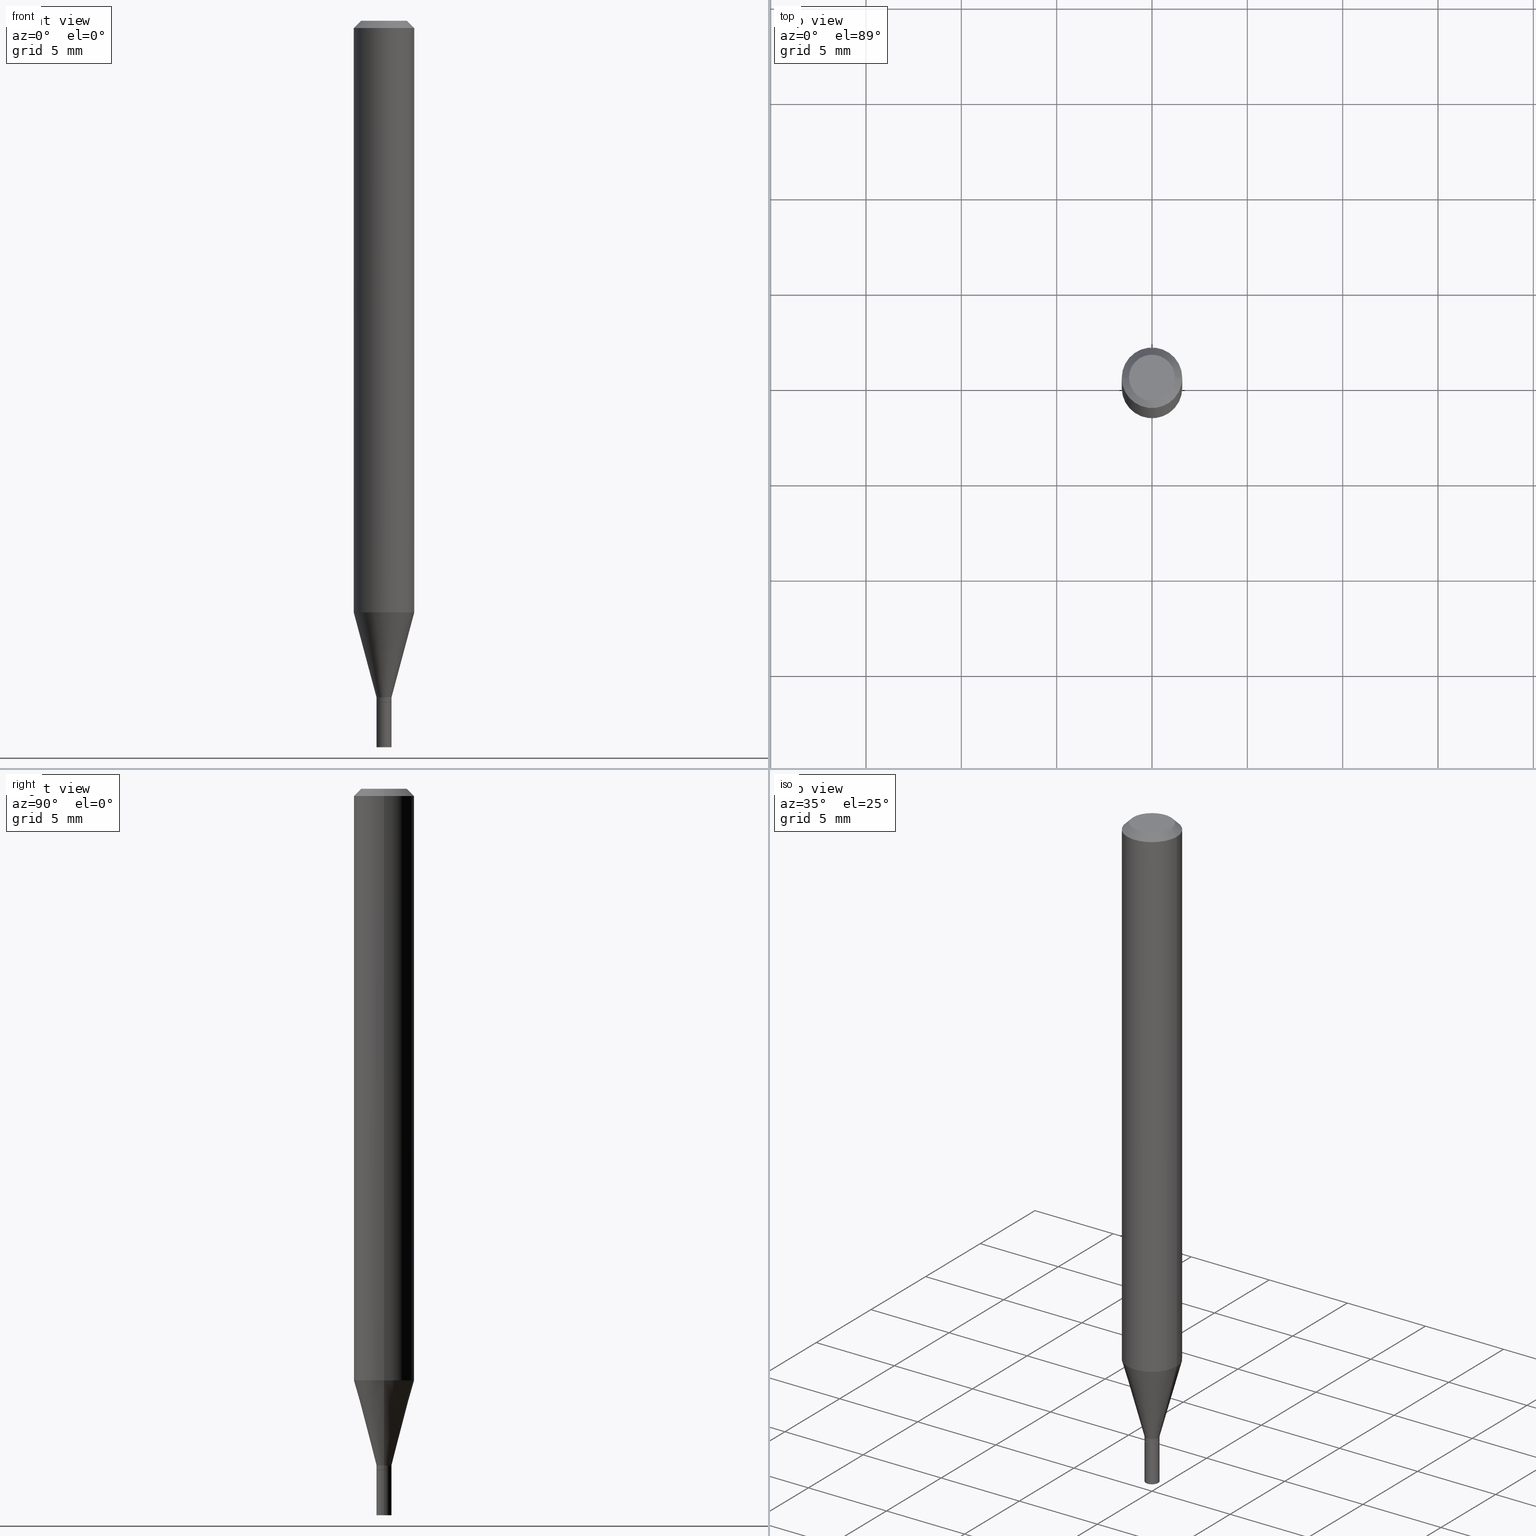
[diagram: canonical four-view strip — front | top / right | iso, engineering-drawing reading convention]
A machine part, canonical four-view strip (front | top / right | iso — engineering-drawing reading convention). The complete STEP part file that produces these views, byte-faithful:
ISO-10303-21;
HEADER;
FILE_DESCRIPTION (( 'STEP AP203' ),
    '1' );
FILE_NAME ('02301.STEP',
    '2024-03-18T20:03:23',
    ( '' ),
    ( '' ),
    'SwSTEP 2.0',
    'SolidWorks 2023',
    '' );
FILE_SCHEMA (( 'CONFIG_CONTROL_DESIGN' ));
ENDSEC;

DATA;
#1 = CARTESIAN_POINT ( 'NONE',  ( 3.668203209277705088E-31, -5.237222008264718399E-17, -0.01499999999999999944 ) ) ;
#2 = ORIENTED_EDGE ( 'NONE', *, *, #271, .F. ) ;
#3 = AXIS2_PLACEMENT_3D ( 'NONE', #211, #40, #324 ) ;
#4 = CARTESIAN_POINT ( 'NONE',  ( -0.01549999999999992183, -4.294273698286767256E-15, -1.397000000000000242 ) ) ;
#5 = EDGE_CURVE ( 'NONE', #394, #454, #462, .T. ) ;
#6 = EDGE_CURVE ( 'NONE', #194, #454, #366, .T. ) ;
#7 = MECHANICAL_CONTEXT ( 'NONE', #140, 'mechanical' ) ;
#8 = ADVANCED_FACE ( 'NONE', ( #451 ), #228, .T. ) ;
#9 = DIRECTION ( 'NONE',  ( 1.000000000000000000, -6.982962677686238312E-15, 0.000000000000000000 ) ) ;
#10 = AXIS2_PLACEMENT_3D ( 'NONE', #14, #128, #413 ) ;
#11 = AXIS2_PLACEMENT_3D ( 'NONE', #322, #326, #367 ) ;
#12 = PERSON_AND_ORGANIZATION ( #253, #344 ) ;
#13 = EDGE_LOOP ( 'NONE', ( #188, #230 ) ) ;
#14 = CARTESIAN_POINT ( 'NONE',  ( 3.416319922240636557E-29, -4.877599430363875031E-15, -1.397000000000000242 ) ) ;
#15 = ORIENTED_EDGE ( 'NONE', *, *, #70, .F. ) ;
#16 = DIRECTION ( 'NONE',  ( -2.445468806185136597E-29, 3.491481338843145583E-15, 1.000000000000000000 ) ) ;
#17 = ORIENTED_EDGE ( 'NONE', *, *, #5, .T. ) ;
#18 = ORIENTED_EDGE ( 'NONE', *, *, #143, .T. ) ;
#19 = CARTESIAN_POINT ( 'NONE',  ( 1.145470065593040868E-44, -1.635427672643458845E-30, -4.684051019975766066E-16 ) ) ;
#20 = CONICAL_SURFACE ( 'NONE', #274, 0.01549999999999992183, 0.2617993877991499629 ) ;
#21 = AXIS2_PLACEMENT_3D ( 'NONE', #68, #277, #392 ) ;
#22 = DIRECTION ( 'NONE',  ( -2.445468806185136597E-29, 3.491481338843145583E-15, 1.000000000000000000 ) ) ;
#23 = CARTESIAN_POINT ( 'NONE',  ( 0.06250000000000000000, -4.811533449433679005E-16, -0.01499999999999999944 ) ) ;
#24 = EDGE_CURVE ( 'NONE', #436, #194, #123, .T. ) ;
#25 = FACE_OUTER_BOUND ( 'NONE', #178, .T. ) ;
#26 = AXIS2_PLACEMENT_3D ( 'NONE', #375, #229, #377 ) ;
#27 = DESIGN_CONTEXT ( 'detailed design', #457, 'design' ) ;
#28 = DIRECTION ( 'NONE',  ( 1.000000000000000000, -6.982962677686238312E-15, 0.000000000000000000 ) ) ;
#29 = FACE_OUTER_BOUND ( 'NONE', #347, .T. ) ;
#30 = DIRECTION ( 'NONE',  ( 1.000000000000000000, -6.982962677686265922E-15, 4.876176775795935793E-29 ) ) ;
#31 = AXIS2_PLACEMENT_3D ( 'NONE', #380, #348, #153 ) ;
#32 = EDGE_CURVE ( 'NONE', #127, #258, #58, .T. ) ;
#33 =( GEOMETRIC_REPRESENTATION_CONTEXT ( 3 ) GLOBAL_UNCERTAINTY_ASSIGNED_CONTEXT ( ( #191 ) ) GLOBAL_UNIT_ASSIGNED_CONTEXT ( ( #219, #282, #243 ) ) REPRESENTATION_CONTEXT ( 'NONE', 'WORKASPACE' ) );
#34 = FACE_OUTER_BOUND ( 'NONE', #52, .T. ) ;
#35 = ORIENTED_EDGE ( 'NONE', *, *, #284, .F. ) ;
#36 = DIRECTION ( 'NONE',  ( -2.445468806185136597E-29, 3.491481338843145583E-15, 1.000000000000000000 ) ) ;
#37 = APPROVAL_ROLE ( '' ) ;
#38 = APPROVAL ( #47, 'UNSPECIFIED' ) ;
#39 = ORIENTED_EDGE ( 'NONE', *, *, #73, .T. ) ;
#40 = DIRECTION ( 'NONE',  ( -2.445468806185136597E-29, 3.491481338843145583E-15, 1.000000000000000000 ) ) ;
#41 = EDGE_CURVE ( 'NONE', #314, #395, #447, .T. ) ;
#42 = PERSON_AND_ORGANIZATION_ROLE ( 'classification_officer' ) ;
#43 = CIRCLE ( 'NONE', #98, 0.01549999999999999989 ) ;
#44 = EDGE_CURVE ( 'NONE', #395, #314, #158, .T. ) ;
#45 = CARTESIAN_POINT ( 'NONE',  ( 3.440774610302487541E-29, -4.912514243752305891E-15, -1.407000000000000028 ) ) ;
#46 = PERSON_AND_ORGANIZATION_ROLE ( 'design_supplier' ) ;
#47 = APPROVAL_STATUS ( 'not_yet_approved' ) ;
#48 = VECTOR ( 'NONE', #292, 39.37007874015748143 ) ;
#49 = ORIENTED_EDGE ( 'NONE', *, *, #73, .F. ) ;
#50 = DIRECTION ( 'NONE',  ( -2.445468806185136597E-29, 3.491481338843145583E-15, 1.000000000000000000 ) ) ;
#51 = DIRECTION ( 'NONE',  ( -2.445468806185136877E-29, 3.491481338843145188E-15, 1.000000000000000000 ) ) ;
#52 = EDGE_LOOP ( 'NONE', ( #363, #71, #39, #339 ) ) ;
#53 = CARTESIAN_POINT ( 'NONE',  ( 0.000000000000000000, 0.000000000000000000, 0.000000000000000000 ) ) ;
#54 = ADVANCED_FACE ( 'NONE', ( #442 ), #398, .T. ) ;
#55 = MANIFOLD_SOLID_BREP ( 'Body-Move/Copy2[1]', #76 ) ;
#56 = CARTESIAN_POINT ( 'NONE',  ( 0.01549999999999992183, -1.082359215041365986E-16, 7.558074002483662259E-31 ) ) ;
#57 = AXIS2_PLACEMENT_3D ( 'NONE', #198, #406, #336 ) ;
#58 = LINE ( 'NONE', #232, #182 ) ;
#59 = PRODUCT_DEFINITION ( 'UNKNOWN', '', #317, #27 ) ;
#60 = DIRECTION ( 'NONE',  ( -2.438088387897960049E-29, 3.491481338843145188E-15, 1.000000000000000000 ) ) ;
#61 = DIRECTION ( 'NONE',  ( 2.438088387897960049E-29, -3.491481338843145188E-15, -1.000000000000000000 ) ) ;
#62 = CONICAL_SURFACE ( 'NONE', #448, 0.01499999999999999944, 0.7853981633974718157 ) ;
#63 = CARTESIAN_POINT ( 'NONE',  ( 3.440774610302487541E-29, -4.912514243752305891E-15, -1.407000000000000028 ) ) ;
#64 = LINE ( 'NONE', #313, #289 ) ;
#65 = DIRECTION ( 'NONE',  ( 1.000000000000000000, -6.982962677686273810E-15, 0.000000000000000000 ) ) ;
#66 = AXIS2_PLACEMENT_3D ( 'NONE', #154, #294, #340 ) ;
#67 = ORIENTED_EDGE ( 'NONE', *, *, #70, .T. ) ;
#68 = CARTESIAN_POINT ( 'NONE',  ( 0.000000000000000000, 0.000000000000000000, 0.000000000000000000 ) ) ;
#69 = DIRECTION ( 'NONE',  ( 1.000000000000000000, -6.982962677686273810E-15, 0.000000000000000000 ) ) ;
#70 = EDGE_CURVE ( 'NONE', #436, #394, #77, .T. ) ;
#71 = ORIENTED_EDGE ( 'NONE', *, *, #6, .T. ) ;
#72 = CARTESIAN_POINT ( 'NONE',  ( 0.06250000000000000000, -4.701606467457928999E-15, -1.221593612044262978 ) ) ;
#73 = EDGE_CURVE ( 'NONE', #454, #304, #346, .T. ) ;
#74 = ORIENTED_EDGE ( 'NONE', *, *, #271, .T. ) ;
#75 =( LENGTH_UNIT ( ) NAMED_UNIT ( * ) SI_UNIT ( $, .METRE. ) );
#76 = CLOSED_SHELL ( 'NONE', ( #359, #306, #267, #305 ) ) ;
#77 = CIRCLE ( 'NONE', #66, 0.01499999999999999944 ) ;
#78 = APPROVAL_STATUS ( 'not_yet_approved' ) ;
#79 = LENGTH_MEASURE_WITH_UNIT ( LENGTH_MEASURE( 0.02539999999999999897 ), #75 );
#80 = DIRECTION ( 'NONE',  ( -2.438088387897960049E-29, 3.491481338843145188E-15, 1.000000000000000000 ) ) ;
#81 = ORIENTED_EDGE ( 'NONE', *, *, #373, .F. ) ;
#82 = APPROVAL_PERSON_ORGANIZATION ( #12, #120, #179 ) ;
#83 = CARTESIAN_POINT ( 'NONE',  ( 0.01549999999999999989, -5.345457929768855342E-15, -1.500000000000000222 ) ) ;
#84 = ORIENTED_EDGE ( 'NONE', *, *, #184, .T. ) ;
#85 = EDGE_CURVE ( 'NONE', #391, #127, #438, .T. ) ;
#86 = ADVANCED_FACE ( 'NONE', ( #333 ), #265, .F. ) ;
#87 = DIRECTION ( 'NONE',  ( -2.445468806185136877E-29, 3.491481338843145188E-15, 1.000000000000000000 ) ) ;
#88 = DIMENSIONAL_EXPONENTS ( 1.000000000000000000, 0.000000000000000000, 0.000000000000000000, 0.000000000000000000, 0.000000000000000000, 0.000000000000000000, 0.000000000000000000 ) ;
#89 = EDGE_LOOP ( 'NONE', ( #445, #84, #190, #325 ) ) ;
#90 = ORIENTED_EDGE ( 'NONE', *, *, #386, .T. ) ;
#91 = DIRECTION ( 'NONE',  ( -2.445468806185136597E-29, 3.491481338843145583E-15, 1.000000000000000000 ) ) ;
#92 = CARTESIAN_POINT ( 'NONE',  ( 3.668203209277704895E-29, -5.237222008264718177E-15, -1.500000000000000222 ) ) ;
#93 = CIRCLE ( 'NONE', #152, 0.01549999999999999989 ) ;
#94 = CARTESIAN_POINT ( 'NONE',  ( 3.316907271900976096E-16, 0.04749999999999999362, -4.000479145938377490E-16 ) ) ;
#95 = DIRECTION ( 'NONE',  ( -2.445468806185136597E-29, 3.491481338843145583E-15, 1.000000000000000000 ) ) ;
#96 = DIRECTION ( 'NONE',  ( -2.445468806185136597E-29, 3.491481338843145583E-15, 1.000000000000000000 ) ) ;
#97 = VECTOR ( 'NONE', #87, 39.37007874015748143 ) ;
#98 = AXIS2_PLACEMENT_3D ( 'NONE', #45, #397, #9 ) ;
#99 = DIRECTION ( 'NONE',  ( -1.000000000000000000, 6.982962677686265922E-15, -4.876176775795935793E-29 ) ) ;
#100 = CARTESIAN_POINT ( 'NONE',  ( -0.04749999999999999362, 3.578768372314202617E-16, -4.684051019975790718E-16 ) ) ;
#101 = ORIENTED_EDGE ( 'NONE', *, *, #201, .T. ) ;
#102 = DIRECTION ( 'NONE',  ( 1.000000000000000000, -6.982962677686267499E-15, 4.876176775795935793E-29 ) ) ;
#103 = CARTESIAN_POINT ( 'NONE',  ( 0.01549999999999992183, -5.019004424587020764E-15, -1.406500000000000083 ) ) ;
#104 = EDGE_CURVE ( 'NONE', #402, #304, #315, .T. ) ;
#105 = AXIS2_PLACEMENT_3D ( 'NONE', #133, #96, #28 ) ;
#106 = CIRCLE ( 'NONE', #202, 0.04749999999999999362 ) ;
#107 = ORIENTED_EDGE ( 'NONE', *, *, #217, .T. ) ;
#108 = CARTESIAN_POINT ( 'NONE',  ( -0.01549999999999999989, 1.101341240428155280E-16, -7.624349389895103058E-31 ) ) ;
#109 = DATE_TIME_ROLE ( 'creation_date' ) ;
#110 = CALENDAR_DATE ( 2024, 18, 3 ) ;
#111 = DATE_AND_TIME ( #181, #456 ) ;
#112 = CIRCLE ( 'NONE', #330, 0.06250000000000000000 ) ;
#113 = SECURITY_CLASSIFICATION ( '', '', #180 ) ;
#114 = CALENDAR_DATE ( 2024, 18, 3 ) ;
#115 = ORIENTED_EDGE ( 'NONE', *, *, #338, .T. ) ;
#116 = LINE ( 'NONE', #254, #423 ) ;
#117 = DIRECTION ( 'NONE',  ( 1.000000000000000000, -6.982962677686267499E-15, 4.852736867747366768E-29 ) ) ;
#118 = EDGE_LOOP ( 'NONE', ( #342, #262, #196, #115 ) ) ;
#119 = EDGE_CURVE ( 'NONE', #194, #402, #452, .T. ) ;
#120 = APPROVAL ( #78, 'UNSPECIFIED' ) ;
#121 = CALENDAR_DATE ( 2024, 18, 3 ) ;
#122 = LOCAL_TIME ( 16, 3, 23.00000000000000000, #434 ) ;
#123 = LINE ( 'NONE', #223, #48 ) ;
#124 = EDGE_LOOP ( 'NONE', ( #334, #101 ) ) ;
#125 = ORIENTED_EDGE ( 'NONE', *, *, #214, .T. ) ;
#126 = DIRECTION ( 'NONE',  ( 1.000000000000000000, -6.982962677686265922E-15, 4.876176775795935793E-29 ) ) ;
#127 = VERTEX_POINT ( 'NONE', #83 ) ;
#128 = DIRECTION ( 'NONE',  ( -2.445468806185136597E-29, 3.491481338843145583E-15, 1.000000000000000000 ) ) ;
#129 = DIRECTION ( 'NONE',  ( -2.445468806185136877E-29, 3.491481338843145188E-15, 1.000000000000000000 ) ) ;
#130 = VERTEX_POINT ( 'NONE', #189 ) ;
#131 = CONICAL_SURFACE ( 'NONE', #159, 0.06250000000000000000, 0.7853981633974639331 ) ;
#132 = CARTESIAN_POINT ( 'NONE',  ( 3.416319922240636557E-29, -4.877599430363875031E-15, -1.397000000000000242 ) ) ;
#133 = CARTESIAN_POINT ( 'NONE',  ( 3.440774610302487541E-29, -4.912514243752305891E-15, -1.407000000000000028 ) ) ;
#134 = CC_DESIGN_PERSON_AND_ORGANIZATION_ASSIGNMENT ( #287, #370, ( #419 ) ) ;
#135 = DIRECTION ( 'NONE',  ( -1.000000000000000000, 6.982962677686265922E-15, -4.876176775795935793E-29 ) ) ;
#136 = DIRECTION ( 'NONE',  ( 0.7071067811865642261, -2.468850131082431399E-15, 0.7071067811865309194 ) ) ;
#137 = CIRCLE ( 'NONE', #216, 0.06250000000000000000 ) ;
#138 = EDGE_CURVE ( 'NONE', #266, #360, #301, .T. ) ;
#139 = ADVANCED_FACE ( 'NONE', ( #374 ), #163, .T. ) ;
#140 = APPLICATION_CONTEXT ( 'configuration controlled 3d designs of mechanical parts and assemblies' ) ;
#141 = DIRECTION ( 'NONE',  ( -2.445468806185136597E-29, 3.491481338843145583E-15, 1.000000000000000000 ) ) ;
#142 = DIRECTION ( 'NONE',  ( -2.445468806185136597E-29, 3.491481338843145583E-15, 1.000000000000000000 ) ) ;
#143 = EDGE_CURVE ( 'NONE', #130, #412, #112, .T. ) ;
#144 = FACE_OUTER_BOUND ( 'NONE', #147, .T. ) ;
#145 = AXIS2_PLACEMENT_3D ( 'NONE', #307, #16, #187 ) ;
#146 = CIRCLE ( 'NONE', #331, 0.01549999999999992183 ) ;
#147 = EDGE_LOOP ( 'NONE', ( #107, #90, #441, #298 ) ) ;
#148 = ORIENTED_EDGE ( 'NONE', *, *, #421, .F. ) ;
#149 = CARTESIAN_POINT ( 'NONE',  ( -0.01499999999999999944, -4.803283606214179568E-15, -1.407000000000000028 ) ) ;
#150 = APPROVAL_ROLE ( '' ) ;
#151 = COORDINATED_UNIVERSAL_TIME_OFFSET ( 5, 0, .BEHIND. ) ;
#152 = AXIS2_PLACEMENT_3D ( 'NONE', #203, #235, #238 ) ;
#153 = DIRECTION ( 'NONE',  ( 1.000000000000000000, -6.982962677686268288E-15, 0.000000000000000000 ) ) ;
#154 = CARTESIAN_POINT ( 'NONE',  ( 3.440774610302487541E-29, -4.912514243752305891E-15, -1.407000000000000028 ) ) ;
#155 = ADVANCED_FACE ( 'NONE', ( #303 ), #446, .T. ) ;
#156 = DIRECTION ( 'NONE',  ( -2.445468806185136597E-29, 3.491481338843145583E-15, 1.000000000000000000 ) ) ;
#157 = EDGE_CURVE ( 'NONE', #394, #436, #259, .T. ) ;
#158 = CIRCLE ( 'NONE', #231, 0.06250000000000000000 ) ;
#159 = AXIS2_PLACEMENT_3D ( 'NONE', #1, #358, #396 ) ;
#160 = ORIENTED_EDGE ( 'NONE', *, *, #284, .T. ) ;
#161 = CARTESIAN_POINT ( 'NONE',  ( 3.668203209277705088E-31, -5.237222008264718399E-17, -0.01499999999999999944 ) ) ;
#162 = ORIENTED_EDGE ( 'NONE', *, *, #157, .F. ) ;
#163 = CYLINDRICAL_SURFACE ( 'NONE', #357, 0.06250000000000000000 ) ;
#164 = CARTESIAN_POINT ( 'NONE',  ( 0.01549999999999999989, -5.020750165256442268E-15, -1.407000000000000028 ) ) ;
#165 = CYLINDRICAL_SURFACE ( 'NONE', #464, 0.01549999999999999989 ) ;
#166 = APPROVAL_PERSON_ORGANIZATION ( #432, #38, #150 ) ;
#167 = DIRECTION ( 'NONE',  ( -2.445468806185136597E-29, 3.491481338843145583E-15, 1.000000000000000000 ) ) ;
#168 = CC_DESIGN_PERSON_AND_ORGANIZATION_ASSIGNMENT ( #288, #278, ( #59 ) ) ;
#169 = CC_DESIGN_PERSON_AND_ORGANIZATION_ASSIGNMENT ( #393, #46, ( #317 ) ) ;
#170 = DIRECTION ( 'NONE',  ( -2.445468806185136597E-29, 3.491481338843145583E-15, 1.000000000000000000 ) ) ;
#171 = FACE_OUTER_BOUND ( 'NONE', #199, .T. ) ;
#172 = AXIS2_PLACEMENT_3D ( 'NONE', #350, #355, #420 ) ;
#173 = DIRECTION ( 'NONE',  ( -2.445468806185136877E-29, 3.491481338843145188E-15, 1.000000000000000000 ) ) ;
#174 = ORIENTED_EDGE ( 'NONE', *, *, #41, .F. ) ;
#175 = LINE ( 'NONE', #431, #400 ) ;
#176 = PERSON_AND_ORGANIZATION ( #253, #344 ) ;
#177 = FACE_OUTER_BOUND ( 'NONE', #319, .T. ) ;
#178 = EDGE_LOOP ( 'NONE', ( #449, #323, #18, #81 ) ) ;
#179 = APPROVAL_ROLE ( '' ) ;
#180 = SECURITY_CLASSIFICATION_LEVEL ( 'unclassified' ) ;
#181 = CALENDAR_DATE ( 2024, 18, 3 ) ;
#182 = VECTOR ( 'NONE', #415, 39.37007874015748143 ) ;
#183 = CC_DESIGN_APPROVAL ( #38, ( #59 ) ) ;
#184 = EDGE_CURVE ( 'NONE', #314, #412, #116, .T. ) ;
#185 = DATE_TIME_ROLE ( 'classification_date' ) ;
#186 = EDGE_LOOP ( 'NONE', ( #162, #15 ) ) ;
#187 = DIRECTION ( 'NONE',  ( 1.000000000000000000, -6.982962677686273810E-15, 0.000000000000000000 ) ) ;
#188 = ORIENTED_EDGE ( 'NONE', *, *, #459, .T. ) ;
#189 = CARTESIAN_POINT ( 'NONE',  ( 0.06250000000000000000, -4.888073874380388472E-16, -0.01499999999999999944 ) ) ;
#190 = ORIENTED_EDGE ( 'NONE', *, *, #143, .F. ) ;
#191 = UNCERTAINTY_MEASURE_WITH_UNIT (LENGTH_MEASURE( 1.000000000000000082E-05 ), #219, 'distance_accuracy_value', 'NONE');
#192 = DIRECTION ( 'NONE',  ( -2.445468806185136597E-29, 3.491481338843145583E-15, 1.000000000000000000 ) ) ;
#193 = ORIENTED_EDGE ( 'NONE', *, *, #421, .T. ) ;
#194 = VERTEX_POINT ( 'NONE', #221 ) ;
#195 = VECTOR ( 'NONE', #51, 39.37007874015748143 ) ;
#196 = ORIENTED_EDGE ( 'NONE', *, *, #373, .T. ) ;
#197 = CARTESIAN_POINT ( 'NONE',  ( 3.440774610302487541E-29, -4.912514243752305891E-15, -1.407000000000000028 ) ) ;
#198 = CARTESIAN_POINT ( 'NONE',  ( 2.987369072089272424E-29, -4.265171300102537329E-15, -1.221593612044262978 ) ) ;
#199 = EDGE_LOOP ( 'NONE', ( #2, #224, #279, #174 ) ) ;
#200 = CARTESIAN_POINT ( 'NONE',  ( -0.06250000000000000000, -3.821082090252475502E-15, -1.221593612044262978 ) ) ;
#201 = EDGE_CURVE ( 'NONE', #360, #266, #106, .T. ) ;
#202 = AXIS2_PLACEMENT_3D ( 'NONE', #308, #170, #207 ) ;
#203 = CARTESIAN_POINT ( 'NONE',  ( 3.668203209277704895E-29, -5.237222008264718177E-15, -1.500000000000000222 ) ) ;
#204 = DIRECTION ( 'NONE',  ( -2.445468806185136597E-29, 3.491481338843145583E-15, 1.000000000000000000 ) ) ;
#205 = ORIENTED_EDGE ( 'NONE', *, *, #184, .F. ) ;
#206 = FACE_OUTER_BOUND ( 'NONE', #286, .T. ) ;
#207 = DIRECTION ( 'NONE',  ( 1.000000000000000000, -6.982962677686267499E-15, 4.852736867747366768E-29 ) ) ;
#208 = CARTESIAN_POINT ( 'NONE',  ( 0.04749999999999999362, -4.035134999187586019E-16, -4.684051019975741414E-16 ) ) ;
#209 = ADVANCED_BREP_SHAPE_REPRESENTATION ( '02301', ( #55, #356, #11 ), #33 ) ;
#210 = ORIENTED_EDGE ( 'NONE', *, *, #255, .F. ) ;
#211 = CARTESIAN_POINT ( 'NONE',  ( 3.439551875899394740E-29, -4.910768503082885176E-15, -1.406500000000000083 ) ) ;
#212 = COORDINATED_UNIVERSAL_TIME_OFFSET ( 5, 0, .BEHIND. ) ;
#213 = ADVANCED_FACE ( 'NONE', ( #171 ), #20, .T. ) ;
#214 = EDGE_CURVE ( 'NONE', #395, #130, #64, .T. ) ;
#215 = AXIS2_PLACEMENT_3D ( 'NONE', #53, #192, #450 ) ;
#216 = AXIS2_PLACEMENT_3D ( 'NONE', #465, #141, #311 ) ;
#217 = EDGE_CURVE ( 'NONE', #127, #391, #93, .T. ) ;
#218 = SHAPE_DEFINITION_REPRESENTATION ( #351, #209 ) ;
#219 =( CONVERSION_BASED_UNIT ( 'INCH', #79 ) LENGTH_UNIT ( ) NAMED_UNIT ( #88 ) );
#220 = APPLICATION_PROTOCOL_DEFINITION ( 'international standard', 'config_control_design', 1994, #140 ) ;
#221 = CARTESIAN_POINT ( 'NONE',  ( -0.01549999999999992183, -4.800634379040069155E-15, -1.406500000000000083 ) ) ;
#222 = CONICAL_SURFACE ( 'NONE', #172, 0.06250000000000000000, 0.7853981633974639331 ) ;
#223 = CARTESIAN_POINT ( 'NONE',  ( -0.01499999999999999944, -4.805932833388290769E-15, -1.407000000000000028 ) ) ;
#224 = ORIENTED_EDGE ( 'NONE', *, *, #104, .T. ) ;
#225 = DIRECTION ( 'NONE',  ( 1.000000000000000000, -6.982962677686238312E-15, 0.000000000000000000 ) ) ;
#226 = ORIENTED_EDGE ( 'NONE', *, *, #85, .T. ) ;
#227 = ORIENTED_EDGE ( 'NONE', *, *, #85, .F. ) ;
#228 = CYLINDRICAL_SURFACE ( 'NONE', #215, 0.01549999999999992183 ) ;
#229 = DIRECTION ( 'NONE',  ( -2.445468806185136597E-29, 3.491481338843145583E-15, 1.000000000000000000 ) ) ;
#230 = ORIENTED_EDGE ( 'NONE', *, *, #255, .T. ) ;
#231 = AXIS2_PLACEMENT_3D ( 'NONE', #372, #50, #256 ) ;
#232 = CARTESIAN_POINT ( 'NONE',  ( 0.01549999999999999989, -1.082359215041371286E-16, 7.558074002483699918E-31 ) ) ;
#233 = CARTESIAN_POINT ( 'NONE',  ( 3.576687321579069994E-29, -5.368277968210015545E-15, -1.500000000000000222 ) ) ;
#234 = CC_DESIGN_PERSON_AND_ORGANIZATION_ASSIGNMENT ( #328, #42, ( #113 ) ) ;
#235 = DIRECTION ( 'NONE',  ( -2.445468806185136597E-29, 3.491481338843145583E-15, 1.000000000000000000 ) ) ;
#236 = CARTESIAN_POINT ( 'NONE',  ( 0.01549999999999992183, -4.985835351868011408E-15, -1.397000000000000242 ) ) ;
#237 = CIRCLE ( 'NONE', #3, 0.01549999999999992183 ) ;
#238 = DIRECTION ( 'NONE',  ( 1.000000000000000000, -6.982962677686238312E-15, 0.000000000000000000 ) ) ;
#239 = CARTESIAN_POINT ( 'NONE',  ( 0.01499999999999999944, -5.017258683917599261E-15, -1.407000000000000028 ) ) ;
#240 = ORIENTED_EDGE ( 'NONE', *, *, #217, .F. ) ;
#241 = FACE_OUTER_BOUND ( 'NONE', #13, .T. ) ;
#242 = CARTESIAN_POINT ( 'NONE',  ( 3.440774610302487541E-29, -4.912514243752305891E-15, -1.407000000000000028 ) ) ;
#243 =( NAMED_UNIT ( * ) SI_UNIT ( $, .STERADIAN. ) SOLID_ANGLE_UNIT ( ) );
#244 = CONICAL_SURFACE ( 'NONE', #309, 0.01499999999999999944, 0.7853981633974718157 ) ;
#245 = LOCAL_TIME ( 16, 3, 23.00000000000000000, #439 ) ;
#246 = ORIENTED_EDGE ( 'NONE', *, *, #386, .F. ) ;
#247 = CARTESIAN_POINT ( 'NONE',  ( 0.01499999999999999944, -5.017258683917599261E-15, -1.407000000000000028 ) ) ;
#248 = APPROVAL_DATE_TIME ( #362, #405 ) ;
#249 = EDGE_CURVE ( 'NONE', #360, #130, #353, .T. ) ;
#250 = ADVANCED_FACE ( 'NONE', ( #206 ), #244, .T. ) ;
#251 = CALENDAR_DATE ( 2024, 18, 3 ) ;
#252 = PERSON_AND_ORGANIZATION_ROLE ( 'creator' ) ;
#253 = PERSON ( 'UNSPECIFIED', 'UNSPECIFIED', 'UNSPECIFIED', ('UNSPECIFIED'), ('UNSPECIFIED'), ('UNSPECIFIED') ) ;
#254 = CARTESIAN_POINT ( 'NONE',  ( -0.06250000000000000000, 4.440892098500626162E-16, -3.074334431409316114E-30 ) ) ;
#255 = EDGE_CURVE ( 'NONE', #257, #258, #269, .T. ) ;
#256 = DIRECTION ( 'NONE',  ( 1.000000000000000000, -6.982962677686270655E-15, 0.000000000000000000 ) ) ;
#257 = VERTEX_POINT ( 'NONE', #273 ) ;
#258 = VERTEX_POINT ( 'NONE', #164 ) ;
#259 = CIRCLE ( 'NONE', #31, 0.01499999999999999944 ) ;
#260 = VECTOR ( 'NONE', #426, 39.37007874015748854 ) ;
#261 = CARTESIAN_POINT ( 'NONE',  ( -0.01549999999999992183, 1.101341240428149734E-16, -7.624349389895065398E-31 ) ) ;
#262 = ORIENTED_EDGE ( 'NONE', *, *, #138, .F. ) ;
#263 = ORIENTED_EDGE ( 'NONE', *, *, #338, .F. ) ;
#264 = ADVANCED_FACE ( 'NONE', ( #25 ), #222, .T. ) ;
#265 = PLANE ( 'NONE',  #383 ) ;
#266 = VERTEX_POINT ( 'NONE', #100 ) ;
#267 = ADVANCED_FACE ( 'NONE', ( #29 ), #165, .T. ) ;
#268 = CARTESIAN_POINT ( 'NONE',  ( 0.000000000000000000, 0.000000000000000000, 0.000000000000000000 ) ) ;
#269 = CIRCLE ( 'NONE', #105, 0.01549999999999999989 ) ;
#270 = LINE ( 'NONE', #418, #410 ) ;
#271 = EDGE_CURVE ( 'NONE', #402, #314, #270, .T. ) ;
#272 = CARTESIAN_POINT ( 'NONE',  ( 3.416319922240636557E-29, -4.877599430363875031E-15, -1.397000000000000242 ) ) ;
#273 = CARTESIAN_POINT ( 'NONE',  ( -0.01549999999999999989, -4.964734001965696802E-15, -1.407000000000000028 ) ) ;
#274 = AXIS2_PLACEMENT_3D ( 'NONE', #272, #167, #65 ) ;
#275 = PLANE ( 'NONE',  #302 ) ;
#276 = CARTESIAN_POINT ( 'NONE',  ( 0.01549999999999992183, -4.985835351868011408E-15, -1.397000000000000242 ) ) ;
#277 = DIRECTION ( 'NONE',  ( -2.445468806185136597E-29, 3.491481338843145583E-15, 1.000000000000000000 ) ) ;
#278 = PERSON_AND_ORGANIZATION_ROLE ( 'creator' ) ;
#279 = ORIENTED_EDGE ( 'NONE', *, *, #341, .T. ) ;
#280 = CYLINDRICAL_SURFACE ( 'NONE', #21, 0.01549999999999999989 ) ;
#281 = CLOSED_SHELL ( 'NONE', ( #8, #384, #264, #139, #54, #213, #155, #388, #299, #86, #250, #443 ) ) ;
#282 =( NAMED_UNIT ( * ) PLANE_ANGLE_UNIT ( ) SI_UNIT ( $, .RADIAN. ) );
#283 = AXIS2_PLACEMENT_3D ( 'NONE', #466, #142, #102 ) ;
#284 = EDGE_CURVE ( 'NONE', #304, #402, #146, .T. ) ;
#285 = CARTESIAN_POINT ( 'NONE',  ( -0.06250000000000000000, -1.714682550242529785E-15, -0.01499999999999999944 ) ) ;
#286 = EDGE_LOOP ( 'NONE', ( #329, #67, #17, #409 ) ) ;
#287 = PERSON_AND_ORGANIZATION ( #253, #344 ) ;
#288 = PERSON_AND_ORGANIZATION ( #253, #344 ) ;
#289 = VECTOR ( 'NONE', #129, 39.37007874015748143 ) ;
#290 = AXIS2_PLACEMENT_3D ( 'NONE', #233, #60, #30 ) ;
#291 = APPROVAL_DATE_TIME ( #327, #120 ) ;
#292 = DIRECTION ( 'NONE',  ( -0.7071067811865642261, 7.493145998870414114E-15, 0.7071067811865309194 ) ) ;
#293 = ORIENTED_EDGE ( 'NONE', *, *, #41, .T. ) ;
#294 = DIRECTION ( 'NONE',  ( -2.445468806185136597E-29, 3.491481338843145583E-15, 1.000000000000000000 ) ) ;
#295 = ORIENTED_EDGE ( 'NONE', *, *, #32, .T. ) ;
#296 = DIRECTION ( 'NONE',  ( 1.000000000000000000, -6.982962677686266711E-15, 4.876176775795935793E-29 ) ) ;
#297 = DIRECTION ( 'NONE',  ( -2.445468806185136597E-29, 3.491481338843145583E-15, 1.000000000000000000 ) ) ;
#298 = ORIENTED_EDGE ( 'NONE', *, *, #32, .F. ) ;
#299 = ADVANCED_FACE ( 'NONE', ( #382 ), #381, .F. ) ;
#300 = CC_DESIGN_DATE_AND_TIME_ASSIGNMENT ( #401, #185, ( #113 ) ) ;
#301 = CIRCLE ( 'NONE', #407, 0.04749999999999999362 ) ;
#302 = AXIS2_PLACEMENT_3D ( 'NONE', #425, #61, #99 ) ;
#303 = FACE_OUTER_BOUND ( 'NONE', #332, .T. ) ;
#304 = VERTEX_POINT ( 'NONE', #236 ) ;
#305 = ADVANCED_FACE ( 'NONE', ( #241 ), #275, .F. ) ;
#306 = ADVANCED_FACE ( 'NONE', ( #389 ), #460, .F. ) ;
#307 = CARTESIAN_POINT ( 'NONE',  ( 3.416319922240636557E-29, -4.877599430363875031E-15, -1.397000000000000242 ) ) ;
#308 = CARTESIAN_POINT ( 'NONE',  ( 1.145470065593040868E-44, -1.635427672643458845E-30, -4.684051019975766066E-16 ) ) ;
#309 = AXIS2_PLACEMENT_3D ( 'NONE', #63, #95, #390 ) ;
#310 = VECTOR ( 'NONE', #136, 39.37007874015748143 ) ;
#311 = DIRECTION ( 'NONE',  ( 1.000000000000000000, -6.982962677686266711E-15, 0.000000000000000000 ) ) ;
#312 = DIRECTION ( 'NONE',  ( -0.2588190451025212391, 5.211531920934549464E-15, 0.9659258262890679791 ) ) ;
#313 = CARTESIAN_POINT ( 'NONE',  ( 0.06250000000000000000, -4.364351673553916694E-16, 3.047610484872459871E-30 ) ) ;
#314 = VERTEX_POINT ( 'NONE', #200 ) ;
#315 = CIRCLE ( 'NONE', #10, 0.01549999999999992183 ) ;
#316 = CARTESIAN_POINT ( 'NONE',  ( 0.000000000000000000, 0.000000000000000000, 0.000000000000000000 ) ) ;
#317 = PRODUCT_DEFINITION_FORMATION_WITH_SPECIFIED_SOURCE ( 'ANY', '', #419, .NOT_KNOWN. ) ;
#318 = CYLINDRICAL_SURFACE ( 'NONE', #283, 0.01549999999999992183 ) ;
#319 = EDGE_LOOP ( 'NONE', ( #378, #427, #148, #345 ) ) ;
#320 = FACE_OUTER_BOUND ( 'NONE', #118, .T. ) ;
#321 = CC_DESIGN_PERSON_AND_ORGANIZATION_ASSIGNMENT ( #369, #252, ( #317 ) ) ;
#322 = CARTESIAN_POINT ( 'NONE',  ( 0.000000000000000000, 0.000000000000000000, 0.000000000000000000 ) ) ;
#323 = ORIENTED_EDGE ( 'NONE', *, *, #249, .T. ) ;
#324 = DIRECTION ( 'NONE',  ( 1.000000000000000000, -6.982962677686273810E-15, 0.000000000000000000 ) ) ;
#325 = ORIENTED_EDGE ( 'NONE', *, *, #214, .F. ) ;
#326 = DIRECTION ( 'NONE',  ( 0.000000000000000000, 0.000000000000000000, 1.000000000000000000 ) ) ;
#327 = DATE_AND_TIME ( #121, #385 ) ;
#328 = PERSON_AND_ORGANIZATION ( #253, #344 ) ;
#329 = ORIENTED_EDGE ( 'NONE', *, *, #24, .F. ) ;
#330 = AXIS2_PLACEMENT_3D ( 'NONE', #161, #91, #411 ) ;
#331 = AXIS2_PLACEMENT_3D ( 'NONE', #132, #204, #387 ) ;
#332 = EDGE_LOOP ( 'NONE', ( #205, #293, #125, #263 ) ) ;
#333 = FACE_OUTER_BOUND ( 'NONE', #186, .T. ) ;
#334 = ORIENTED_EDGE ( 'NONE', *, *, #138, .T. ) ;
#335 = CC_DESIGN_DATE_AND_TIME_ASSIGNMENT ( #429, #109, ( #59 ) ) ;
#336 = DIRECTION ( 'NONE',  ( 1.000000000000000000, -6.982962677686270655E-15, 0.000000000000000000 ) ) ;
#337 = CARTESIAN_POINT ( 'NONE',  ( 3.439551875899394740E-29, -4.910768503082885176E-15, -1.406500000000000083 ) ) ;
#338 = EDGE_CURVE ( 'NONE', #412, #130, #137, .T. ) ;
#339 = ORIENTED_EDGE ( 'NONE', *, *, #104, .F. ) ;
#340 = DIRECTION ( 'NONE',  ( 1.000000000000000000, -6.982962677686268288E-15, 0.000000000000000000 ) ) ;
#341 = EDGE_CURVE ( 'NONE', #304, #395, #458, .T. ) ;
#342 = ORIENTED_EDGE ( 'NONE', *, *, #249, .F. ) ;
#343 = EDGE_LOOP ( 'NONE', ( #240, #227 ) ) ;
#344 = ORGANIZATION ( 'UNSPECIFIED', 'UNSPECIFIED', '' ) ;
#345 = ORIENTED_EDGE ( 'NONE', *, *, #5, .F. ) ;
#346 = LINE ( 'NONE', #56, #195 ) ;
#347 = EDGE_LOOP ( 'NONE', ( #246, #226, #295, #210 ) ) ;
#348 = DIRECTION ( 'NONE',  ( -2.445468806185136597E-29, 3.491481338843145583E-15, 1.000000000000000000 ) ) ;
#349 = ORIENTED_EDGE ( 'NONE', *, *, #44, .F. ) ;
#350 = CARTESIAN_POINT ( 'NONE',  ( 3.668203209277705088E-31, -5.237222008264718399E-17, -0.01499999999999999944 ) ) ;
#351 = PRODUCT_DEFINITION_SHAPE ( 'NONE', 'NONE',  #59 ) ;
#352 = CC_DESIGN_APPROVAL ( #120, ( #113 ) ) ;
#353 = LINE ( 'NONE', #23, #416 ) ;
#354 = DIRECTION ( 'NONE',  ( -2.445468806185136597E-29, 3.491481338843145583E-15, 1.000000000000000000 ) ) ;
#355 = DIRECTION ( 'NONE',  ( 2.445468806185136597E-29, -3.491481338843145583E-15, -1.000000000000000000 ) ) ;
#356 = MANIFOLD_SOLID_BREP ( 'Body-Move/Copy2[2]', #281 ) ;
#357 = AXIS2_PLACEMENT_3D ( 'NONE', #268, #156, #296 ) ;
#358 = DIRECTION ( 'NONE',  ( 2.445468806185136597E-29, -3.491481338843145583E-15, -1.000000000000000000 ) ) ;
#359 = ADVANCED_FACE ( 'NONE', ( #144 ), #280, .T. ) ;
#360 = VERTEX_POINT ( 'NONE', #208 ) ;
#361 = DIRECTION ( 'NONE',  ( -0.7071067811865585639, 2.468850131082372629E-15, -0.7071067811865364705 ) ) ;
#362 = DATE_AND_TIME ( #110, #417 ) ;
#363 = ORIENTED_EDGE ( 'NONE', *, *, #119, .F. ) ;
#364 = LINE ( 'NONE', #108, #368 ) ;
#365 = APPROVAL_DATE_TIME ( #111, #38 ) ;
#366 = CIRCLE ( 'NONE', #463, 0.01549999999999992183 ) ;
#367 = DIRECTION ( 'NONE',  ( 1.000000000000000000, 0.000000000000000000, 0.000000000000000000 ) ) ;
#368 = VECTOR ( 'NONE', #173, 39.37007874015748143 ) ;
#369 = PERSON_AND_ORGANIZATION ( #253, #344 ) ;
#370 = PERSON_AND_ORGANIZATION_ROLE ( 'design_owner' ) ;
#371 = COORDINATED_UNIVERSAL_TIME_OFFSET ( 5, 0, .BEHIND. ) ;
#372 = CARTESIAN_POINT ( 'NONE',  ( 2.987369072089272424E-29, -4.265171300102537329E-15, -1.221593612044262978 ) ) ;
#373 = EDGE_CURVE ( 'NONE', #266, #412, #175, .T. ) ;
#374 = FACE_OUTER_BOUND ( 'NONE', #89, .T. ) ;
#375 = CARTESIAN_POINT ( 'NONE',  ( 0.000000000000000000, 0.000000000000000000, 0.000000000000000000 ) ) ;
#376 = ORIENTED_EDGE ( 'NONE', *, *, #119, .T. ) ;
#377 = DIRECTION ( 'NONE',  ( 1.000000000000000000, -6.982962677686266711E-15, 4.876176775795935793E-29 ) ) ;
#378 = ORIENTED_EDGE ( 'NONE', *, *, #157, .T. ) ;
#379 = CC_DESIGN_SECURITY_CLASSIFICATION ( #113, ( #317 ) ) ;
#380 = CARTESIAN_POINT ( 'NONE',  ( 3.440774610302487541E-29, -4.912514243752305891E-15, -1.407000000000000028 ) ) ;
#381 = PLANE ( 'NONE',  #424 ) ;
#382 = FACE_OUTER_BOUND ( 'NONE', #124, .T. ) ;
#383 = AXIS2_PLACEMENT_3D ( 'NONE', #197, #80, #126 ) ;
#384 = ADVANCED_FACE ( 'NONE', ( #177 ), #62, .T. ) ;
#385 = LOCAL_TIME ( 16, 3, 23.00000000000000000, #371 ) ;
#386 = EDGE_CURVE ( 'NONE', #391, #257, #364, .T. ) ;
#387 = DIRECTION ( 'NONE',  ( 1.000000000000000000, -6.982962677686273810E-15, 0.000000000000000000 ) ) ;
#388 = ADVANCED_FACE ( 'NONE', ( #320 ), #131, .T. ) ;
#389 = FACE_OUTER_BOUND ( 'NONE', #343, .T. ) ;
#390 = DIRECTION ( 'NONE',  ( 1.000000000000000000, -6.982962677686268288E-15, 0.000000000000000000 ) ) ;
#391 = VERTEX_POINT ( 'NONE', #428 ) ;
#392 = DIRECTION ( 'NONE',  ( 1.000000000000000000, -6.982962677686266711E-15, 4.876176775795935232E-29 ) ) ;
#393 = PERSON_AND_ORGANIZATION ( #253, #344 ) ;
#394 = VERTEX_POINT ( 'NONE', #247 ) ;
#395 = VERTEX_POINT ( 'NONE', #72 ) ;
#396 = DIRECTION ( 'NONE',  ( -1.000000000000000000, 6.982962677686266711E-15, 0.000000000000000000 ) ) ;
#397 = DIRECTION ( 'NONE',  ( -2.445468806185136597E-29, 3.491481338843145583E-15, 1.000000000000000000 ) ) ;
#398 = CONICAL_SURFACE ( 'NONE', #145, 0.01549999999999992183, 0.2617993877991499629 ) ;
#399 = APPROVAL_STATUS ( 'not_yet_approved' ) ;
#400 = VECTOR ( 'NONE', #361, 39.37007874015748143 ) ;
#401 = DATE_AND_TIME ( #114, #245 ) ;
#402 = VERTEX_POINT ( 'NONE', #4 ) ;
#403 = DIRECTION ( 'NONE',  ( -2.445468806185136877E-29, 3.491481338843145188E-15, 1.000000000000000000 ) ) ;
#404 = EDGE_LOOP ( 'NONE', ( #160, #74, #349, #414 ) ) ;
#405 = APPROVAL ( #399, 'UNSPECIFIED' ) ;
#406 = DIRECTION ( 'NONE',  ( -2.445468806185136597E-29, 3.491481338843145583E-15, 1.000000000000000000 ) ) ;
#407 = AXIS2_PLACEMENT_3D ( 'NONE', #19, #444, #117 ) ;
#408 = EDGE_LOOP ( 'NONE', ( #193, #376, #35, #49 ) ) ;
#409 = ORIENTED_EDGE ( 'NONE', *, *, #6, .F. ) ;
#410 = VECTOR ( 'NONE', #312, 39.37007874015748854 ) ;
#411 = DIRECTION ( 'NONE',  ( 1.000000000000000000, -6.982962677686266711E-15, 0.000000000000000000 ) ) ;
#412 = VERTEX_POINT ( 'NONE', #285 ) ;
#413 = DIRECTION ( 'NONE',  ( 1.000000000000000000, -6.982962677686273810E-15, 0.000000000000000000 ) ) ;
#414 = ORIENTED_EDGE ( 'NONE', *, *, #341, .F. ) ;
#415 = DIRECTION ( 'NONE',  ( -2.445468806185136877E-29, 3.491481338843145188E-15, 1.000000000000000000 ) ) ;
#416 = VECTOR ( 'NONE', #422, 39.37007874015748143 ) ;
#417 = LOCAL_TIME ( 16, 3, 23.00000000000000000, #212 ) ;
#418 = CARTESIAN_POINT ( 'NONE',  ( -0.01549999999999992183, -4.767465306321060588E-15, -1.397000000000000242 ) ) ;
#419 = PRODUCT ( '02301', '02301', '', ( #7 ) ) ;
#420 = DIRECTION ( 'NONE',  ( -1.000000000000000000, 6.982962677686266711E-15, 0.000000000000000000 ) ) ;
#421 = EDGE_CURVE ( 'NONE', #454, #194, #237, .T. ) ;
#422 = DIRECTION ( 'NONE',  ( 0.7071067811865585639, -7.319954787623292333E-15, -0.7071067811865364705 ) ) ;
#423 = VECTOR ( 'NONE', #403, 39.37007874015748143 ) ;
#424 = AXIS2_PLACEMENT_3D ( 'NONE', #94, #461, #135 ) ;
#425 = CARTESIAN_POINT ( 'NONE',  ( 1.082359215041715180E-16, 0.01549999999999508715, -1.407000000000000028 ) ) ;
#426 = DIRECTION ( 'NONE',  ( 0.2588190451025212391, 1.565188264969622362E-15, 0.9659258262890679791 ) ) ;
#427 = ORIENTED_EDGE ( 'NONE', *, *, #24, .T. ) ;
#428 = CARTESIAN_POINT ( 'NONE',  ( -0.01549999999999999989, -4.964734001965696802E-15, -1.500000000000000222 ) ) ;
#429 = DATE_AND_TIME ( #251, #122 ) ;
#430 = APPROVAL_PERSON_ORGANIZATION ( #176, #405, #37 ) ;
#431 = CARTESIAN_POINT ( 'NONE',  ( -0.06250000000000000000, 3.840629472727444916E-16, -0.01499999999999999944 ) ) ;
#432 = PERSON_AND_ORGANIZATION ( #253, #344 ) ;
#433 = DIRECTION ( 'NONE',  ( 1.000000000000000000, -6.982962677686268288E-15, 0.000000000000000000 ) ) ;
#434 = COORDINATED_UNIVERSAL_TIME_OFFSET ( 5, 0, .BEHIND. ) ;
#435 = PRODUCT_RELATED_PRODUCT_CATEGORY ( 'detail', '', ( #419 ) ) ;
#436 = VERTEX_POINT ( 'NONE', #149 ) ;
#437 = APPLICATION_PROTOCOL_DEFINITION ( 'international standard', 'config_control_design', 1994, #457 ) ;
#438 = CIRCLE ( 'NONE', #455, 0.01549999999999999989 ) ;
#439 = COORDINATED_UNIVERSAL_TIME_OFFSET ( 5, 0, .BEHIND. ) ;
#440 = CC_DESIGN_APPROVAL ( #405, ( #317 ) ) ;
#441 = ORIENTED_EDGE ( 'NONE', *, *, #459, .F. ) ;
#442 = FACE_OUTER_BOUND ( 'NONE', #404, .T. ) ;
#443 = ADVANCED_FACE ( 'NONE', ( #34 ), #318, .T. ) ;
#444 = DIRECTION ( 'NONE',  ( -2.445468806185136597E-29, 3.491481338843145583E-15, 1.000000000000000000 ) ) ;
#445 = ORIENTED_EDGE ( 'NONE', *, *, #44, .T. ) ;
#446 = CYLINDRICAL_SURFACE ( 'NONE', #26, 0.06250000000000000000 ) ;
#447 = CIRCLE ( 'NONE', #57, 0.06250000000000000000 ) ;
#448 = AXIS2_PLACEMENT_3D ( 'NONE', #242, #36, #433 ) ;
#449 = ORIENTED_EDGE ( 'NONE', *, *, #201, .F. ) ;
#450 = DIRECTION ( 'NONE',  ( 1.000000000000000000, -6.982962677686267499E-15, 4.876176775795935793E-29 ) ) ;
#451 = FACE_OUTER_BOUND ( 'NONE', #408, .T. ) ;
#452 = LINE ( 'NONE', #261, #97 ) ;
#453 = DIRECTION ( 'NONE',  ( 1.000000000000000000, -6.982962677686266711E-15, 4.876176775795935232E-29 ) ) ;
#454 = VERTEX_POINT ( 'NONE', #103 ) ;
#455 = AXIS2_PLACEMENT_3D ( 'NONE', #92, #22, #225 ) ;
#456 = LOCAL_TIME ( 16, 3, 23.00000000000000000, #151 ) ;
#457 = APPLICATION_CONTEXT ( 'configuration controlled 3d designs of mechanical parts and assemblies' ) ;
#458 = LINE ( 'NONE', #276, #260 ) ;
#459 = EDGE_CURVE ( 'NONE', #258, #257, #43, .T. ) ;
#460 = PLANE ( 'NONE',  #290 ) ;
#461 = DIRECTION ( 'NONE',  ( 2.438088387897960049E-29, -3.491481338843145188E-15, -1.000000000000000000 ) ) ;
#462 = LINE ( 'NONE', #239, #310 ) ;
#463 = AXIS2_PLACEMENT_3D ( 'NONE', #337, #297, #69 ) ;
#464 = AXIS2_PLACEMENT_3D ( 'NONE', #316, #354, #453 ) ;
#465 = CARTESIAN_POINT ( 'NONE',  ( 3.668203209277705088E-31, -5.237222008264718399E-17, -0.01499999999999999944 ) ) ;
#466 = CARTESIAN_POINT ( 'NONE',  ( 0.000000000000000000, 0.000000000000000000, 0.000000000000000000 ) ) ;
ENDSEC;
END-ISO-10303-21;
